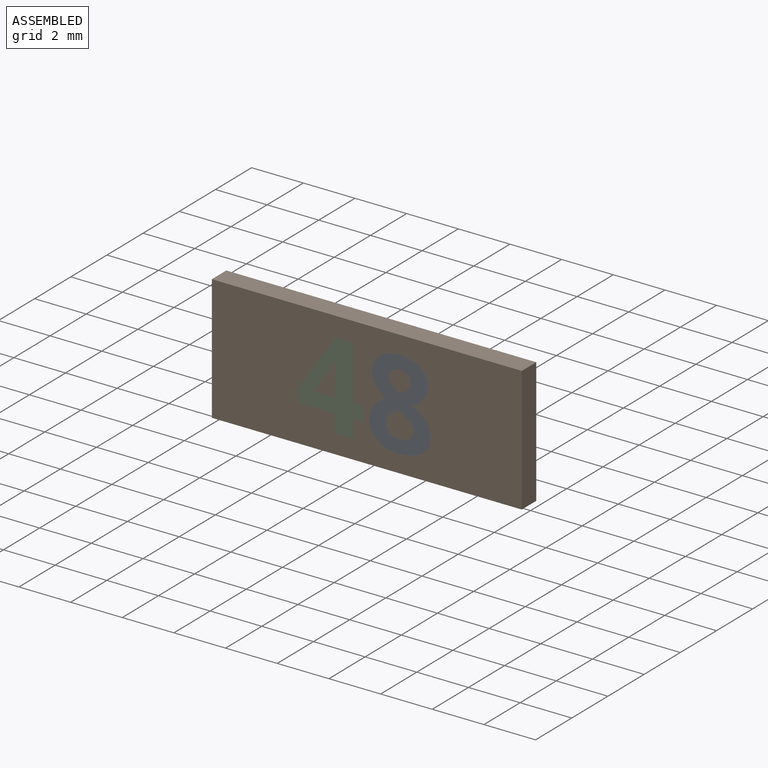
[diagram: assembled view]
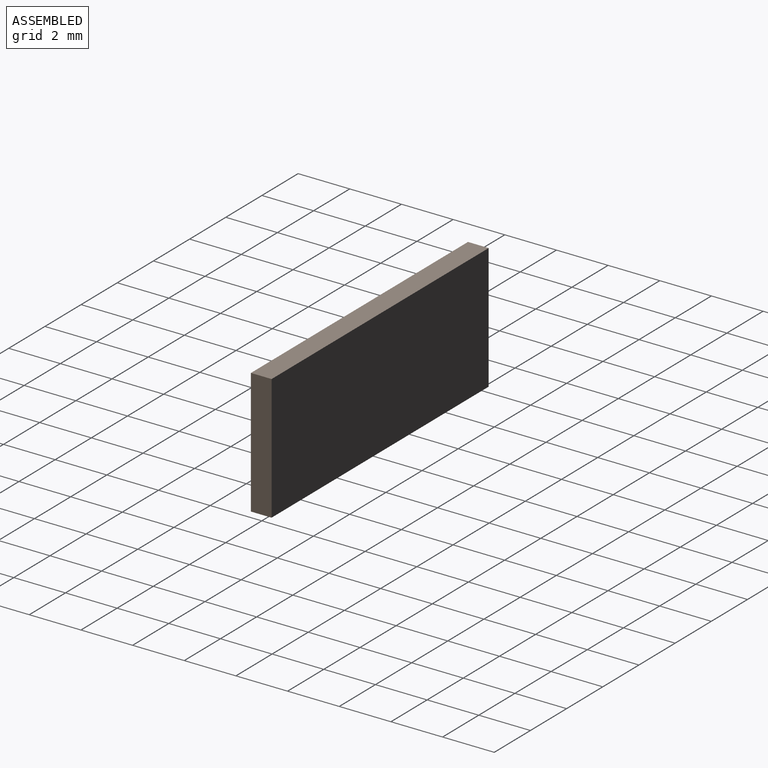
[diagram: assembled view, second angle]
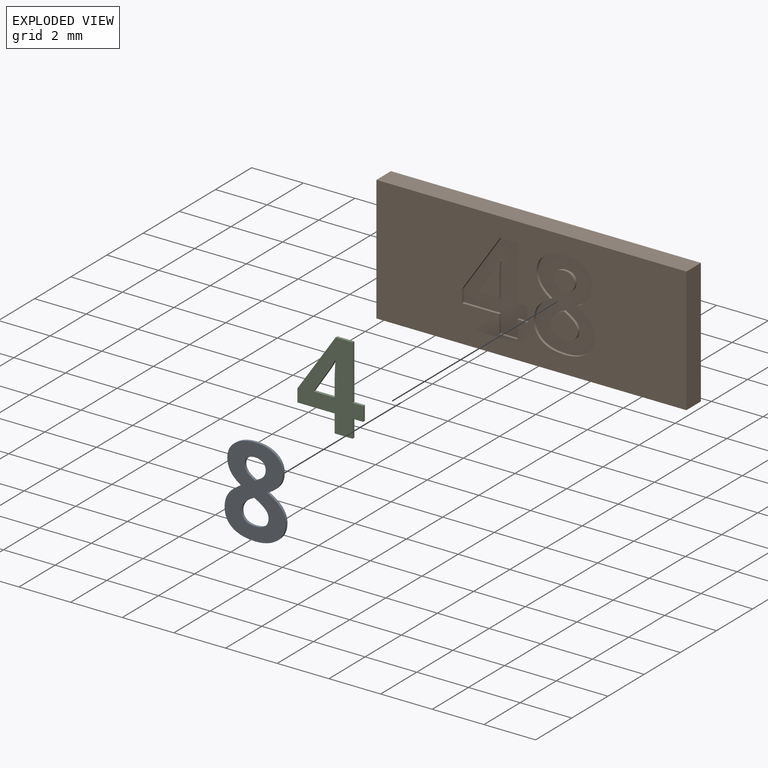
[diagram: exploded view]
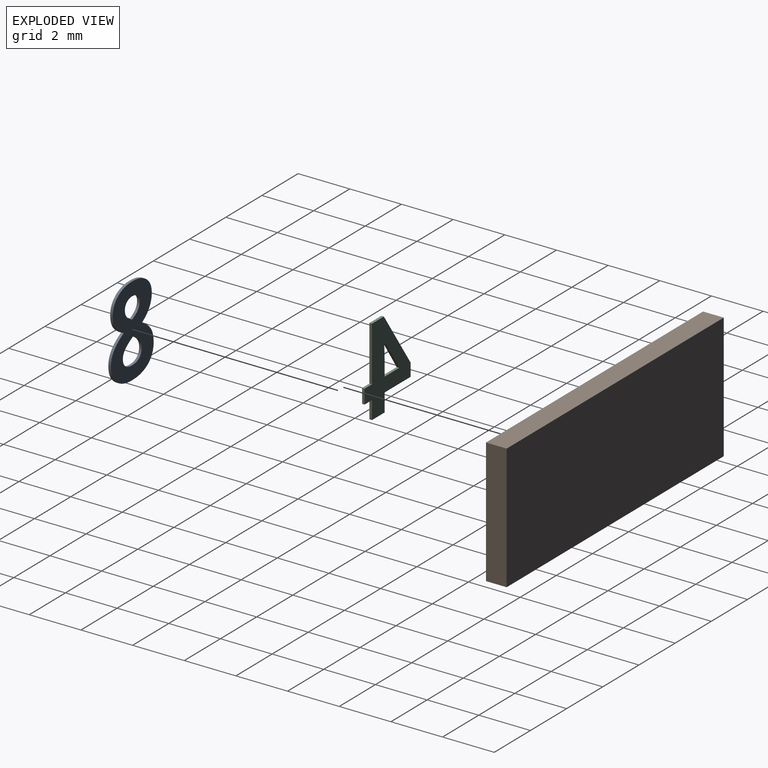
[diagram: exploded view, second angle]
ASSEMBLY  parts=3 mates=2
PART A: 33 faces, bbox 2.4x0.1x3.5 mm
  f0: plane 3.46x2.37mm, normal (0,-1,0), area 5.2mm2, adj f1,f2,f3,f4,f5,f6,f7,f8
  f1: extruded ~0.59x0.3mm, area 0.1mm2, adj f0,f2,f23,f25
  f2: extruded ~0.45x0.13mm, area 0mm2, adj f0,f1,f3,f23
  f3: extruded ~0.42x0.39mm, area 0.1mm2, adj f0,f2,f4,f23
  f4: extruded ~0.49x0.39mm, area 0.1mm2, adj f0,f3,f5,f23
  f5: extruded ~0.51x0.15mm, area 0.1mm2, adj f0,f4,f6,f23
  f6: extruded ~0.67x0.32mm, area 0.1mm2, adj f0,f5,f7,f23
  f7: extruded ~0.87x0.24mm, area 0.1mm2, adj f0,f6,f8,f23
  f8: extruded ~0.86x0.25mm, area 0.1mm2, adj f0,f7,f9,f23
  f9: extruded ~0.67x0.33mm, area 0.1mm2, adj f0,f8,f10,f23
  f10: extruded ~0.48x0.17mm, area 0.1mm2, adj f0,f9,f11,f23
  f11: extruded ~0.54x0.42mm, area 0.1mm2, adj f0,f10,f12,f23
  f12: extruded ~0.46x0.36mm, area 0.1mm2, adj f0,f11,f13,f23
  f13: extruded ~0.46x0.14mm, area 0mm2, adj f0,f12,f23,f24
  f14: extruded ~0.42x0.29mm, area 0.1mm2, adj f0,f15,f23,f31
  f15: extruded ~0.29x0.13mm, area 0mm2, adj f0,f14,f16,f23
  f16: extruded ~0.3x0.13mm, area 0mm2, adj f0,f15,f17,f23
  f17: extruded ~0.4x0.11mm, area 0mm2, adj f0,f16,f23,f30
  f18: extruded ~0.25x0.12mm, area 0mm2, adj f0,f19,f23,f28
  f19: extruded ~0.26x0.1mm, area 0mm2, adj f0,f18,f20,f23
  f20: extruded ~0.32x0.22mm, area 0mm2, adj f0,f19,f21,f23
  f21: extruded ~0.32x0.22mm, area 0mm2, adj f0,f20,f22,f23
  f22: extruded ~0.25x0.1mm, area 0mm2, adj f0,f21,f23,f27
  f23: plane 3.46x2.37mm, normal (0,1,0), area 5.2mm2, adj f1,f2,f3,f4,f5,f6,f7,f8
  f24: extruded ~0.59x0.3mm, area 0.1mm2, adj f0,f13,f23,f26
  f25: extruded ~0.78x0.22mm, area 0.1mm2, adj f0,f1,f23,f26
  f26: extruded ~0.78x0.22mm, area 0.1mm2, adj f0,f23,f24,f25
  f27: extruded ~0.25x0.11mm, area 0mm2, adj f0,f22,f23,f29
  f28: extruded ~0.3x0.1mm, area 0mm2, adj f0,f18,f23,f29
  f29: extruded ~0.29x0.1mm, area 0mm2, adj f0,f23,f27,f28
  f30: extruded ~0.38x0.11mm, area 0mm2, adj f0,f17,f23,f32
  f31: extruded ~0.57x0.49mm, area 0.1mm2, adj f0,f14,f23,f32
  f32: extruded ~0.31x0.14mm, area 0mm2, adj f0,f23,f30,f31
PART B: 60 faces, bbox 12x0.8x4.9 mm
  f0: plane 12x4.85mm, normal (0,-1,0), area 46.9mm2, adj f1,f2,f3,f4,f6,f7,f8,f9
  f1: plane 12x0.8mm, normal (0,0,-1), area 9.6mm2, adj f0,f2,f4,f5
  f2: plane 4.85x0.8mm, normal (1,0,0), area 3.9mm2, adj f0,f1,f3,f5
  f3: plane 12x0.8mm, normal (0,0,1), area 9.6mm2, adj f0,f2,f4,f5
  f4: plane 4.85x0.8mm, normal (-1,0,0), area 3.9mm2, adj f0,f1,f3,f5
  f5: plane 12x4.85mm, normal (0,1,0), area 58.2mm2, adj f1,f2,f3,f4
  f6: extruded ~0.78x0.22mm, area 0.1mm2, adj f0,f7,f36,f37
  f7: extruded ~0.59x0.3mm, area 0.1mm2, adj f0,f6,f8,f37
  f8: extruded ~0.45x0.13mm, area 0mm2, adj f0,f7,f9,f37
  f9: extruded ~0.42x0.39mm, area 0.1mm2, adj f0,f8,f10,f37
  f10: extruded ~0.49x0.39mm, area 0.1mm2, adj f0,f9,f11,f37
  f11: extruded ~0.51x0.15mm, area 0.1mm2, adj f0,f10,f12,f37
  f12: extruded ~0.67x0.32mm, area 0.1mm2, adj f0,f11,f13,f37
  f13: extruded ~0.87x0.24mm, area 0.1mm2, adj f0,f12,f14,f37
  f14: extruded ~0.86x0.25mm, area 0.1mm2, adj f0,f13,f15,f37
  f15: extruded ~0.67x0.33mm, area 0.1mm2, adj f0,f14,f16,f37
  f16: extruded ~0.48x0.17mm, area 0.1mm2, adj f0,f15,f17,f37
  f17: extruded ~0.54x0.42mm, area 0.1mm2, adj f0,f16,f18,f37
  f18: extruded ~0.46x0.36mm, area 0.1mm2, adj f0,f17,f19,f37
  f19: extruded ~0.46x0.14mm, area 0mm2, adj f0,f18,f20,f37
  f20: extruded ~0.59x0.3mm, area 0.1mm2, adj f0,f19,f36,f37
  f21: extruded ~0.57x0.49mm, area 0.1mm2, adj f22,f34,f37,f39
  f22: extruded ~0.42x0.29mm, area 0.1mm2, adj f21,f23,f37,f39
  f23: extruded ~0.29x0.13mm, area 0mm2, adj f22,f24,f37,f39
  f24: extruded ~0.3x0.13mm, area 0mm2, adj f23,f25,f37,f39
  f25: extruded ~0.4x0.11mm, area 0mm2, adj f24,f26,f37,f39
  f26: extruded ~0.38x0.11mm, area 0mm2, adj f25,f34,f37,f39
  f27: extruded ~0.3x0.1mm, area 0mm2, adj f28,f35,f37,f38
  f28: extruded ~0.25x0.12mm, area 0mm2, adj f27,f29,f37,f38
  f29: extruded ~0.26x0.1mm, area 0mm2, adj f28,f30,f37,f38
  f30: extruded ~0.32x0.22mm, area 0mm2, adj f29,f31,f37,f38
  f31: extruded ~0.32x0.22mm, area 0mm2, adj f30,f32,f37,f38
  f32: extruded ~0.25x0.1mm, area 0mm2, adj f31,f33,f37,f38
  f33: extruded ~0.25x0.11mm, area 0mm2, adj f32,f35,f37,f38
  f34: extruded ~0.31x0.14mm, area 0mm2, adj f21,f26,f37,f39
  f35: extruded ~0.29x0.1mm, area 0mm2, adj f27,f33,f37,f38
  f36: extruded ~0.78x0.22mm, area 0.1mm2, adj f0,f6,f20,f37
  f37: plane 3.46x2.37mm, normal (0,-1,0), area 5.2mm2, adj f6,f7,f8,f9,f10,f11,f12,f13
  f38: plane 0.82x0.82mm, normal (0,-1,0), area 0.5mm2, adj f27,f28,f29,f30,f31,f32,f33,f35
  f39: plane 1.04x0.99mm, normal (0,-1,0), area 0.8mm2, adj f21,f22,f23,f24,f25,f26,f34
  f40: plane 0.55x0.1mm, normal (-1,0,0), area 0.1mm2, adj f0,f41,f57,f58
  f41: plane 0.41x0.1mm, normal (0,0,-1), area 0mm2, adj f0,f40,f42,f58
  f42: plane 2.12x0.1mm, normal (-1,0,0), area 0.2mm2, adj f0,f41,f43,f58
  f43: plane 0.66x0.1mm, normal (0,0,-1), area 0.1mm2, adj f0,f42,f44,f58
  f44: plane 2.18x1.48mm, normal (0.83,0,-0.56), area 0.3mm2, adj f0,f43,f45,f58
  f45: plane 0.5x0.1mm, normal (1,0,0), area 0mm2, adj f0,f44,f46,f58
  f46: plane 1.44x0.1mm, normal (0,0,1), area 0.1mm2, adj f0,f45,f47,f58
  f47: plane 0.7x0.1mm, normal (1,0,0), area 0.1mm2, adj f0,f46,f48,f58
  f48: plane 0.7x0.1mm, normal (0,0,1), area 0.1mm2, adj f0,f47,f49,f58
  f49: plane 0.7x0.1mm, normal (-1,0,0), area 0.1mm2, adj f0,f48,f57,f58
  f50: plane 0.81x0.1mm, normal (0,0,-1), area 0.1mm2, adj f51,f56,f58,f59
  f51: plane 0.93x0.62mm, normal (-0.83,0,0.55), area 0.1mm2, adj f50,f52,f58,f59
  f52: extruded ~0.37x0.21mm, area 0mm2, adj f51,f53,f58,f59
  f53: plane 0.1x0.02mm, normal (0,0,1), area 0mm2, adj f52,f54,f58,f59
  f54: extruded ~0.32x0.1mm, area 0mm2, adj f53,f55,f58,f59
  f55: extruded ~0.42x0.1mm, area 0mm2, adj f54,f56,f58,f59
  f56: plane 0.57x0.1mm, normal (1,0,0), area 0.1mm2, adj f50,f55,f58,f59
  f57: plane 0.41x0.1mm, normal (0,0,1), area 0mm2, adj f0,f40,f49,f58
  f58: plane 3.37x2.54mm, normal (0,-1,0), area 4.3mm2, adj f40,f41,f42,f43,f44,f45,f46,f47
  f59: plane 1.3x0.84mm, normal (0,-1,0), area 0.5mm2, adj f50,f51,f52,f53,f54,f55,f56
PART C: 20 faces, bbox 2.5x0.1x3.4 mm
  f0: plane 3.37x2.54mm, normal (0,-1,0), area 4.3mm2, adj f1,f2,f3,f4,f5,f6,f7,f8
  f1: plane 0.41x0.1mm, normal (0,0,1), area 0mm2, adj f0,f2,f13,f15
  f2: plane 2.12x0.1mm, normal (1,0,0), area 0.2mm2, adj f0,f1,f3,f13
  f3: plane 0.66x0.1mm, normal (0,0,1), area 0.1mm2, adj f0,f2,f4,f13
  f4: plane 2.18x1.48mm, normal (-0.83,0,0.56), area 0.3mm2, adj f0,f3,f5,f13
  f5: plane 0.5x0.1mm, normal (-1,0,0), area 0mm2, adj f0,f4,f6,f13
  f6: plane 1.44x0.1mm, normal (0,0,-1), area 0.1mm2, adj f0,f5,f7,f13
  f7: plane 0.7x0.1mm, normal (-1,0,0), area 0.1mm2, adj f0,f6,f8,f13
  f8: plane 0.7x0.1mm, normal (0,0,-1), area 0.1mm2, adj f0,f7,f13,f14
  f9: plane 0.93x0.62mm, normal (0.83,0,-0.55), area 0.1mm2, adj f0,f10,f13,f18
  f10: extruded ~0.37x0.21mm, area 0mm2, adj f0,f9,f11,f13
  f11: plane 0.1x0.02mm, normal (0,0,-1), area 0mm2, adj f0,f10,f12,f13
  f12: extruded ~0.32x0.1mm, area 0mm2, adj f0,f11,f13,f17
  f13: plane 3.37x2.54mm, normal (0,1,0), area 4.3mm2, adj f1,f2,f3,f4,f5,f6,f7,f8
  f14: plane 0.7x0.1mm, normal (1,0,0), area 0.1mm2, adj f0,f8,f13,f16
  f15: plane 0.55x0.1mm, normal (1,0,0), area 0.1mm2, adj f0,f1,f13,f16
  f16: plane 0.41x0.1mm, normal (0,0,-1), area 0mm2, adj f0,f13,f14,f15
  f17: extruded ~0.42x0.1mm, area 0mm2, adj f0,f12,f13,f19
  f18: plane 0.81x0.1mm, normal (0,0,1), area 0.1mm2, adj f0,f9,f13,f19
  f19: plane 0.57x0.1mm, normal (-1,0,0), area 0.1mm2, adj f0,f13,f17,f18
PLACE A t=(-0.25,0.36,-0.03)mm
PLACE B t=(-0.03,0.36,-0.03)mm
PLACE C t=(-2.9,0.36,-0.03)mm
MATE fastened C.f0 <-> B.f0  axis (0,-1,0) through (-1.28,-0.44,-1.73)mm
MATE fastened A.f0 <-> B.f0  axis (0,-1,0) through (1.25,-0.44,-1.78)mm
